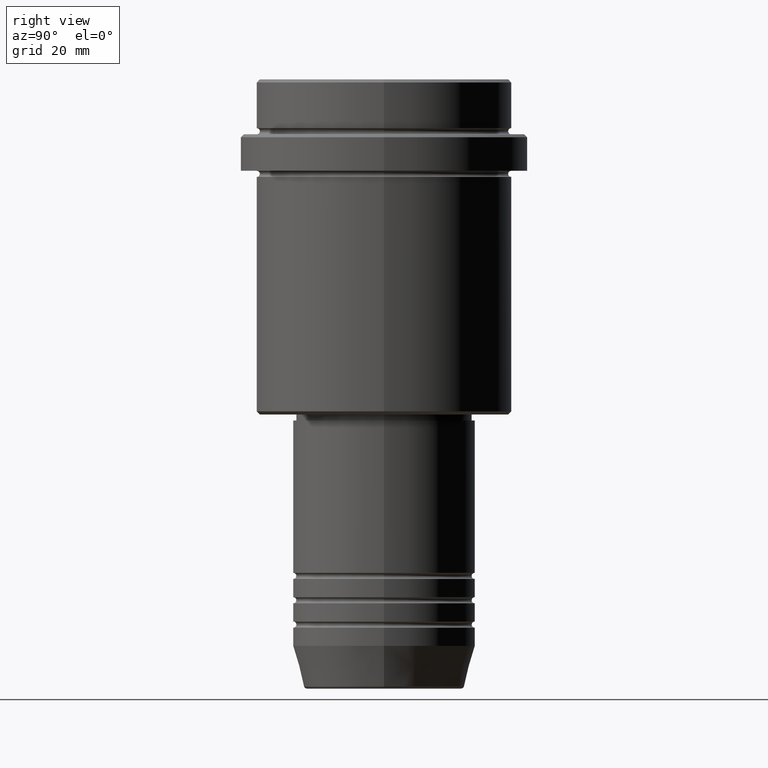
[diagram: clean part render]
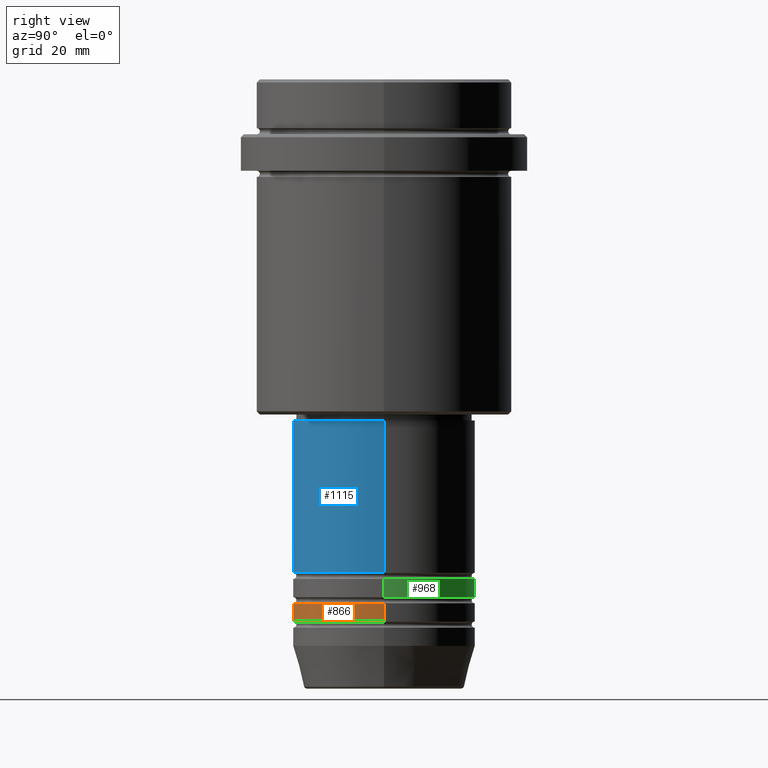
[diagram: same view with three faces highlighted in distinct colors, each labeled with its STEP entity id]
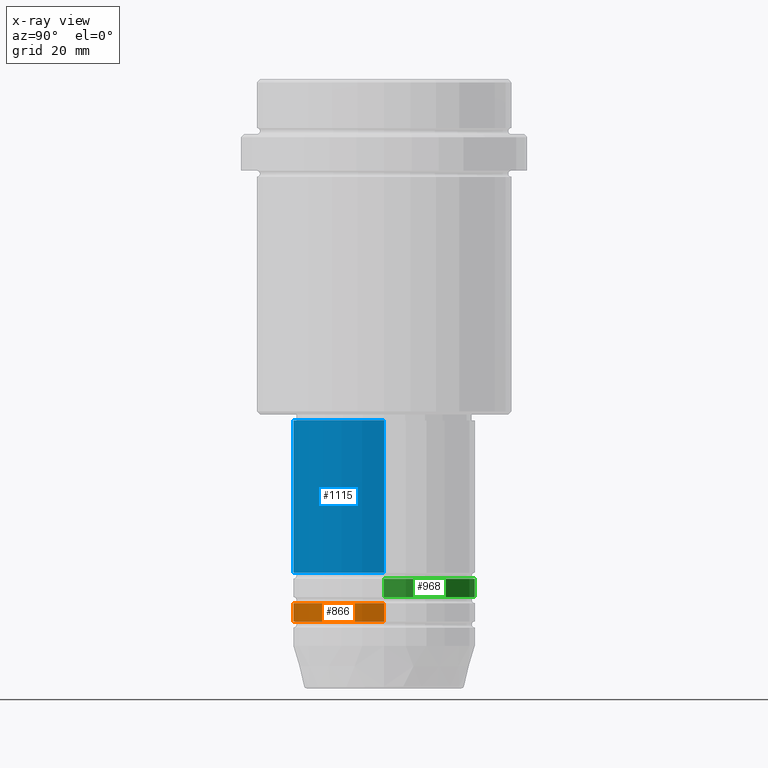
[diagram: x-ray of the same camera — body ghosted, the three highlighted faces saturated]
A machine part, right view with three faces highlighted in distinct colors.
The next image is the same camera in x-ray (body ghosted, the three faces saturated) — at least one of them is partly hidden behind the body in this view.
Their STEP definitions:

[orange] entity #866 — the highlighted cylindrical surface (partial cylindrical patch) has radius 15 mm, axis along (-0, -0, 1).
#9 = VECTOR ( 'NONE', #1233, 1000.000000000000000 ) ;
#15 = CARTESIAN_POINT ( 'NONE',  ( 15.00000000000000000, 0.000000000000000000, -85.99999999999988631 ) ) ;
#34 = CARTESIAN_POINT ( 'NONE',  ( 0.000000000000000000, 0.000000000000000000, -85.99999999999988631 ) ) ;
#117 = CARTESIAN_POINT ( 'NONE',  ( 15.00000000000000000, 0.000000000000000000, 0.000000000000000000 ) ) ;
#139 = DIRECTION ( 'NONE',  ( 1.000000000000000000, 0.000000000000000000, 0.000000000000000000 ) ) ;
#151 = CIRCLE ( 'NONE', #957, 15.00000000000000000 ) ;
#181 = CARTESIAN_POINT ( 'NONE',  ( 15.00000000000000000, 0.000000000000000000, -88.99999999999988631 ) ) ;
#198 = ORIENTED_EDGE ( 'NONE', *, *, #1178, .T. ) ;
#219 = VECTOR ( 'NONE', #546, 1000.000000000000000 ) ;
#230 = DIRECTION ( 'NONE',  ( -0.000000000000000000, -0.000000000000000000, 1.000000000000000000 ) ) ;
#235 = DIRECTION ( 'NONE',  ( -0.000000000000000000, -0.000000000000000000, 1.000000000000000000 ) ) ;
#340 = CARTESIAN_POINT ( 'NONE',  ( -15.00000000000000000, 1.836970198721029589E-15, -88.99999999999988631 ) ) ;
#342 = CYLINDRICAL_SURFACE ( 'NONE', #1374, 15.00000000000000000 ) ;
#348 = AXIS2_PLACEMENT_3D ( 'NONE', #34, #1341, #802 ) ;
#361 = CARTESIAN_POINT ( 'NONE',  ( -15.00000000000000000, 1.836970198721029589E-15, 0.000000000000000000 ) ) ;
#482 = CARTESIAN_POINT ( 'NONE',  ( -15.00000000000000000, 1.836970198721029589E-15, -85.99999999999988631 ) ) ;
#546 = DIRECTION ( 'NONE',  ( -0.000000000000000000, -0.000000000000000000, 1.000000000000000000 ) ) ;
#548 = EDGE_LOOP ( 'NONE', ( #1145, #789, #198, #1245 ) ) ;
#567 = DIRECTION ( 'NONE',  ( 1.000000000000000000, 0.000000000000000000, 0.000000000000000000 ) ) ;
#720 = LINE ( 'NONE', #361, #9 ) ;
#789 = ORIENTED_EDGE ( 'NONE', *, *, #868, .T. ) ;
#794 = EDGE_CURVE ( 'NONE', #1335, #1062, #1040, .T. ) ;
#802 = DIRECTION ( 'NONE',  ( 1.000000000000000000, 0.000000000000000000, 0.000000000000000000 ) ) ;
#866 = ADVANCED_FACE ( 'NONE', ( #1118 ), #342, .T. ) ;
#868 = EDGE_CURVE ( 'NONE', #1090, #1190, #151, .T. ) ;
#957 = AXIS2_PLACEMENT_3D ( 'NONE', #1006, #235, #567 ) ;
#1006 = CARTESIAN_POINT ( 'NONE',  ( 0.000000000000000000, 0.000000000000000000, -88.99999999999988631 ) ) ;
#1040 = CIRCLE ( 'NONE', #348, 15.00000000000000000 ) ;
#1062 = VERTEX_POINT ( 'NONE', #15 ) ;
#1090 = VERTEX_POINT ( 'NONE', #340 ) ;
#1101 = LINE ( 'NONE', #117, #219 ) ;
#1118 = FACE_OUTER_BOUND ( 'NONE', #548, .T. ) ;
#1145 = ORIENTED_EDGE ( 'NONE', *, *, #1234, .F. ) ;
#1178 = EDGE_CURVE ( 'NONE', #1190, #1062, #1101, .T. ) ;
#1190 = VERTEX_POINT ( 'NONE', #181 ) ;
#1210 = CARTESIAN_POINT ( 'NONE',  ( 0.000000000000000000, 0.000000000000000000, 0.000000000000000000 ) ) ;
#1233 = DIRECTION ( 'NONE',  ( -0.000000000000000000, -0.000000000000000000, 1.000000000000000000 ) ) ;
#1234 = EDGE_CURVE ( 'NONE', #1090, #1335, #720, .T. ) ;
#1245 = ORIENTED_EDGE ( 'NONE', *, *, #794, .F. ) ;
#1335 = VERTEX_POINT ( 'NONE', #482 ) ;
#1341 = DIRECTION ( 'NONE',  ( -0.000000000000000000, -0.000000000000000000, 1.000000000000000000 ) ) ;
#1374 = AXIS2_PLACEMENT_3D ( 'NONE', #1210, #230, #139 ) ;

[blue] entity #1115 — the highlighted cylindrical surface (partial cylindrical patch) has radius 15 mm, axis along (-0, -0, 1).
#11 = EDGE_CURVE ( 'NONE', #373, #168, #452, .T. ) ;
#134 = CIRCLE ( 'NONE', #1332, 15.00000000000000000 ) ;
#152 = CIRCLE ( 'NONE', #443, 15.00000000000000000 ) ;
#165 = DIRECTION ( 'NONE',  ( -0.000000000000000000, -0.000000000000000000, 1.000000000000000000 ) ) ;
#168 = VERTEX_POINT ( 'NONE', #900 ) ;
#245 = ORIENTED_EDGE ( 'NONE', *, *, #1314, .F. ) ;
#247 = CARTESIAN_POINT ( 'NONE',  ( 0.000000000000000000, 0.000000000000000000, -80.99999999999987210 ) ) ;
#324 = CYLINDRICAL_SURFACE ( 'NONE', #391, 15.00000000000000000 ) ;
#373 = VERTEX_POINT ( 'NONE', #1011 ) ;
#391 = AXIS2_PLACEMENT_3D ( 'NONE', #550, #445, #1199 ) ;
#421 = VERTEX_POINT ( 'NONE', #989 ) ;
#443 = AXIS2_PLACEMENT_3D ( 'NONE', #1227, #1417, #1205 ) ;
#445 = DIRECTION ( 'NONE',  ( -0.000000000000000000, -0.000000000000000000, 1.000000000000000000 ) ) ;
#452 = LINE ( 'NONE', #1107, #478 ) ;
#478 = VECTOR ( 'NONE', #1223, 1000.000000000000000 ) ;
#550 = CARTESIAN_POINT ( 'NONE',  ( 0.000000000000000000, 0.000000000000000000, 0.000000000000000000 ) ) ;
#678 = FACE_OUTER_BOUND ( 'NONE', #1054, .T. ) ;
#775 = ORIENTED_EDGE ( 'NONE', *, *, #1053, .F. ) ;
#779 = DIRECTION ( 'NONE',  ( -0.000000000000000000, -0.000000000000000000, 1.000000000000000000 ) ) ;
#797 = LINE ( 'NONE', #1140, #909 ) ;
#900 = CARTESIAN_POINT ( 'NONE',  ( 15.00000000000000000, 0.000000000000000000, -55.99999999999997868 ) ) ;
#909 = VECTOR ( 'NONE', #165, 1000.000000000000000 ) ;
#919 = CARTESIAN_POINT ( 'NONE',  ( -15.00000000000000000, 1.836970198721029589E-15, -55.99999999999997868 ) ) ;
#989 = CARTESIAN_POINT ( 'NONE',  ( -15.00000000000000000, 1.836970198721029589E-15, -80.99999999999987210 ) ) ;
#1011 = CARTESIAN_POINT ( 'NONE',  ( 15.00000000000000000, 0.000000000000000000, -80.99999999999987210 ) ) ;
#1053 = EDGE_CURVE ( 'NONE', #1181, #168, #152, .T. ) ;
#1054 = EDGE_LOOP ( 'NONE', ( #245, #1157, #1173, #775 ) ) ;
#1083 = EDGE_CURVE ( 'NONE', #421, #373, #134, .T. ) ;
#1107 = CARTESIAN_POINT ( 'NONE',  ( 15.00000000000000000, 0.000000000000000000, 0.000000000000000000 ) ) ;
#1111 = DIRECTION ( 'NONE',  ( 1.000000000000000000, 0.000000000000000000, 0.000000000000000000 ) ) ;
#1115 = ADVANCED_FACE ( 'NONE', ( #678 ), #324, .T. ) ;
#1140 = CARTESIAN_POINT ( 'NONE',  ( -15.00000000000000000, 1.836970198721029589E-15, 0.000000000000000000 ) ) ;
#1157 = ORIENTED_EDGE ( 'NONE', *, *, #1083, .T. ) ;
#1173 = ORIENTED_EDGE ( 'NONE', *, *, #11, .T. ) ;
#1181 = VERTEX_POINT ( 'NONE', #919 ) ;
#1199 = DIRECTION ( 'NONE',  ( 1.000000000000000000, 0.000000000000000000, 0.000000000000000000 ) ) ;
#1205 = DIRECTION ( 'NONE',  ( 1.000000000000000000, 0.000000000000000000, 0.000000000000000000 ) ) ;
#1223 = DIRECTION ( 'NONE',  ( -0.000000000000000000, -0.000000000000000000, 1.000000000000000000 ) ) ;
#1227 = CARTESIAN_POINT ( 'NONE',  ( 0.000000000000000000, 0.000000000000000000, -55.99999999999997868 ) ) ;
#1314 = EDGE_CURVE ( 'NONE', #421, #1181, #797, .T. ) ;
#1332 = AXIS2_PLACEMENT_3D ( 'NONE', #247, #779, #1111 ) ;
#1417 = DIRECTION ( 'NONE',  ( -0.000000000000000000, -0.000000000000000000, 1.000000000000000000 ) ) ;

[green] entity #968 — the highlighted cylindrical surface (partial cylindrical patch) has radius 15 mm, axis along (-0, -0, 1).
#14 = CARTESIAN_POINT ( 'NONE',  ( -15.00000000000000000, 1.836970198721029589E-15, -81.99999999999987210 ) ) ;
#40 = CYLINDRICAL_SURFACE ( 'NONE', #837, 15.00000000000000000 ) ;
#81 = VECTOR ( 'NONE', #416, 1000.000000000000000 ) ;
#277 = CARTESIAN_POINT ( 'NONE',  ( 15.00000000000000000, 0.000000000000000000, -84.99999999999988631 ) ) ;
#287 = VECTOR ( 'NONE', #517, 1000.000000000000000 ) ;
#338 = FACE_OUTER_BOUND ( 'NONE', #708, .T. ) ;
#356 = CARTESIAN_POINT ( 'NONE',  ( 15.00000000000000000, 0.000000000000000000, -81.99999999999987210 ) ) ;
#359 = VERTEX_POINT ( 'NONE', #656 ) ;
#416 = DIRECTION ( 'NONE',  ( -0.000000000000000000, -0.000000000000000000, 1.000000000000000000 ) ) ;
#428 = EDGE_CURVE ( 'NONE', #1285, #981, #627, .T. ) ;
#472 = CARTESIAN_POINT ( 'NONE',  ( 0.000000000000000000, 0.000000000000000000, 0.000000000000000000 ) ) ;
#517 = DIRECTION ( 'NONE',  ( -0.000000000000000000, -0.000000000000000000, 1.000000000000000000 ) ) ;
#547 = CARTESIAN_POINT ( 'NONE',  ( 15.00000000000000000, 0.000000000000000000, 0.000000000000000000 ) ) ;
#557 = DIRECTION ( 'NONE',  ( -0.000000000000000000, -0.000000000000000000, 1.000000000000000000 ) ) ;
#581 = CIRCLE ( 'NONE', #1116, 15.00000000000000000 ) ;
#594 = VERTEX_POINT ( 'NONE', #277 ) ;
#627 = CIRCLE ( 'NONE', #807, 15.00000000000000000 ) ;
#656 = CARTESIAN_POINT ( 'NONE',  ( -15.00000000000000000, 1.836970198721029589E-15, -84.99999999999988631 ) ) ;
#708 = EDGE_LOOP ( 'NONE', ( #1029, #964, #1358, #864 ) ) ;
#807 = AXIS2_PLACEMENT_3D ( 'NONE', #1416, #880, #1307 ) ;
#811 = EDGE_CURVE ( 'NONE', #594, #1285, #1310, .T. ) ;
#825 = LINE ( 'NONE', #1256, #287 ) ;
#837 = AXIS2_PLACEMENT_3D ( 'NONE', #472, #1243, #1143 ) ;
#864 = ORIENTED_EDGE ( 'NONE', *, *, #811, .F. ) ;
#880 = DIRECTION ( 'NONE',  ( -0.000000000000000000, -0.000000000000000000, 1.000000000000000000 ) ) ;
#964 = ORIENTED_EDGE ( 'NONE', *, *, #1356, .T. ) ;
#968 = ADVANCED_FACE ( 'NONE', ( #338 ), #40, .T. ) ;
#975 = EDGE_CURVE ( 'NONE', #594, #359, #581, .T. ) ;
#981 = VERTEX_POINT ( 'NONE', #14 ) ;
#1004 = DIRECTION ( 'NONE',  ( 1.000000000000000000, 0.000000000000000000, 0.000000000000000000 ) ) ;
#1029 = ORIENTED_EDGE ( 'NONE', *, *, #975, .T. ) ;
#1110 = CARTESIAN_POINT ( 'NONE',  ( 0.000000000000000000, 0.000000000000000000, -84.99999999999988631 ) ) ;
#1116 = AXIS2_PLACEMENT_3D ( 'NONE', #1110, #557, #1004 ) ;
#1143 = DIRECTION ( 'NONE',  ( 1.000000000000000000, 0.000000000000000000, 0.000000000000000000 ) ) ;
#1243 = DIRECTION ( 'NONE',  ( -0.000000000000000000, -0.000000000000000000, 1.000000000000000000 ) ) ;
#1256 = CARTESIAN_POINT ( 'NONE',  ( -15.00000000000000000, 1.836970198721029589E-15, 0.000000000000000000 ) ) ;
#1285 = VERTEX_POINT ( 'NONE', #356 ) ;
#1307 = DIRECTION ( 'NONE',  ( 1.000000000000000000, 0.000000000000000000, 0.000000000000000000 ) ) ;
#1310 = LINE ( 'NONE', #547, #81 ) ;
#1356 = EDGE_CURVE ( 'NONE', #359, #981, #825, .T. ) ;
#1358 = ORIENTED_EDGE ( 'NONE', *, *, #428, .F. ) ;
#1416 = CARTESIAN_POINT ( 'NONE',  ( 0.000000000000000000, 0.000000000000000000, -81.99999999999987210 ) ) ;